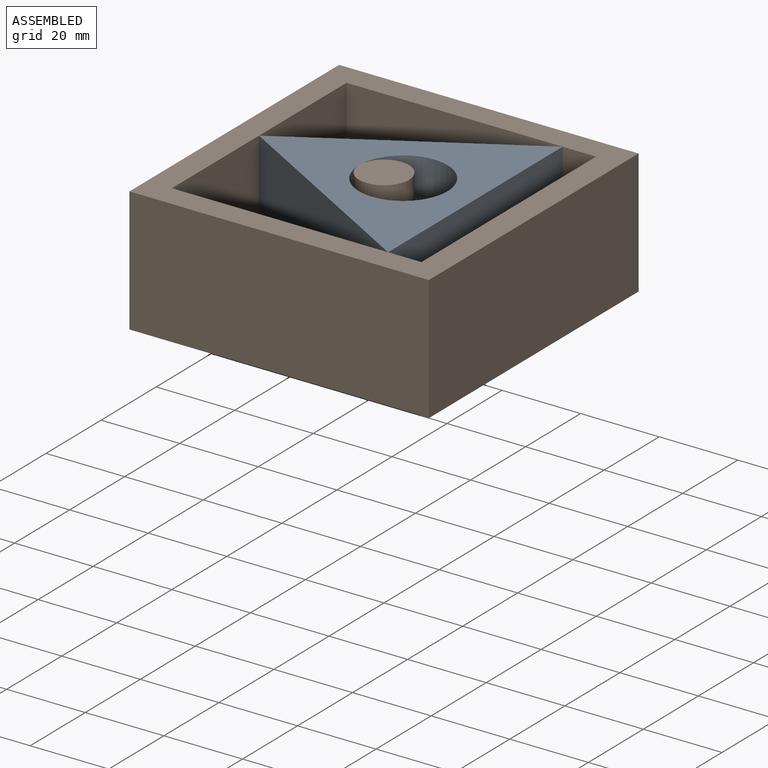
[diagram: assembled view]
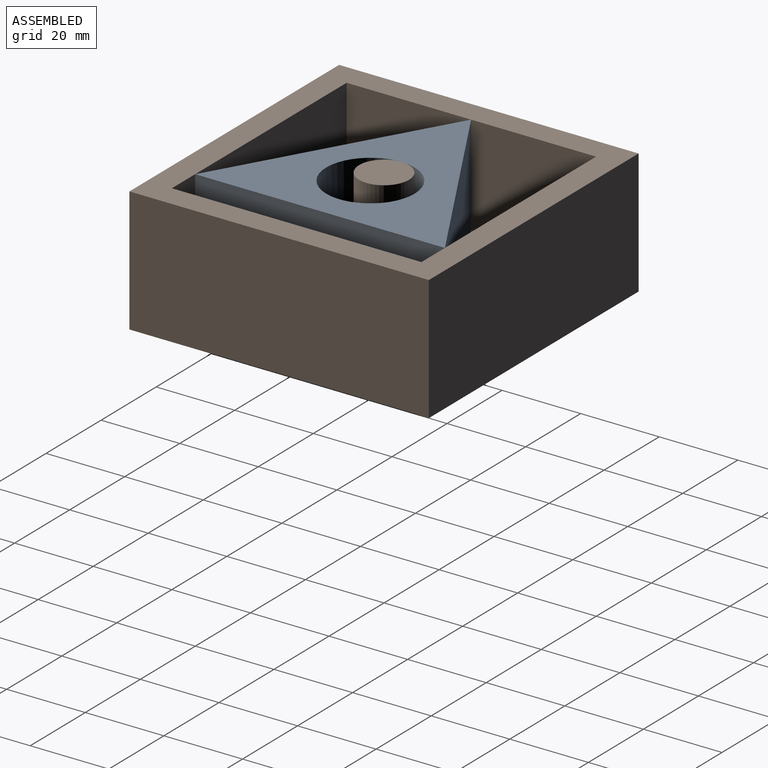
[diagram: assembled view, second angle]
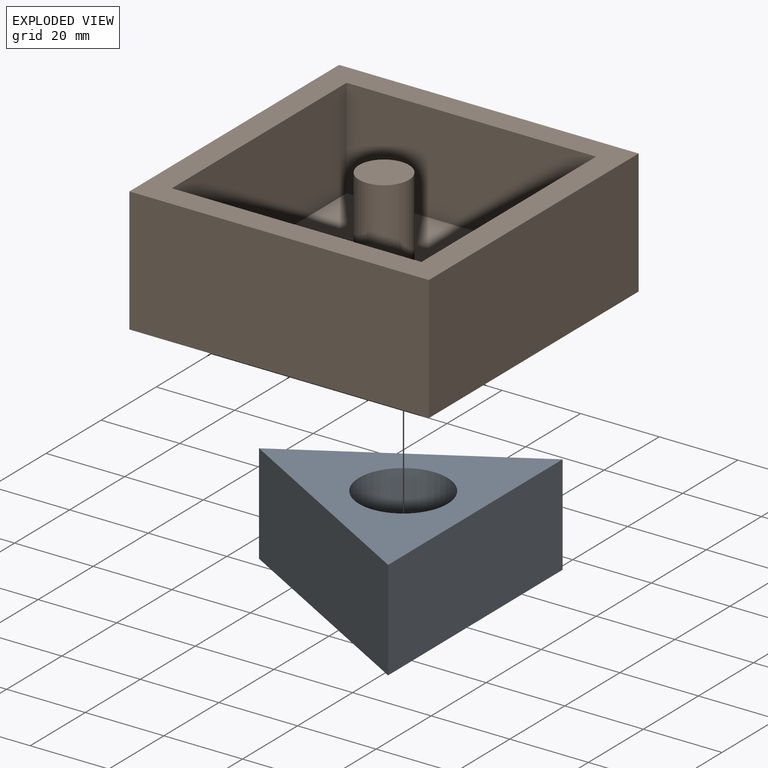
[diagram: exploded view]
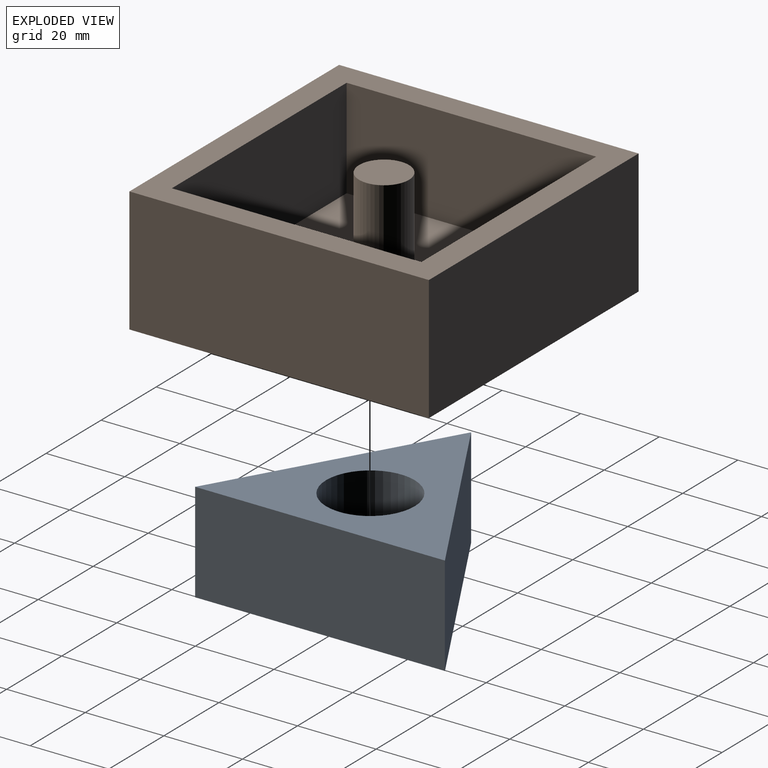
[diagram: exploded view, second angle]
ASSEMBLY  parts=2 mates=7
PART A: 6 faces, bbox 63.5x55x25.4 mm
  f0: cylinder r=11.26mm len=25.4mm, axis (0,0,-1), area 1797.3mm2, adj f1,f2
  f1: plane 63.5x54.99mm, normal (0,0,1), area 1347.6mm2, adj f0,f3,f4,f5
  f2: plane 63.5x54.99mm, normal (0,0,-1), area 1347.6mm2, adj f0,f3,f4,f5
  f3: plane 54.99x31.75mm, normal (-0.87,0.5,0), area 1612.9mm2, adj f1,f2,f4,f5
  f4: plane 54.99x31.75mm, normal (0.87,0.5,0), area 1612.9mm2, adj f1,f2,f3,f5
  f5: plane 63.5x25.4mm, normal (0,-1,0), area 1612.9mm2, adj f1,f2,f3,f4
PART B: 13 faces, bbox 76.2x76.2x31.8 mm
  f0: plane 63.5x25.4mm, normal (-1,0,0), area 1612.9mm2, adj f1,f7,f8,f11
  f1: plane 63.5x25.4mm, normal (0,1,0), area 1612.9mm2, adj f0,f2,f8,f11
  f2: plane 63.5x25.4mm, normal (1,0,0), area 1612.9mm2, adj f1,f7,f8,f11
  f3: plane 76.2x31.75mm, normal (0,1,0), area 2419.3mm2, adj f4,f6,f8,f12
  f4: plane 76.2x31.75mm, normal (-1,0,0), area 2419.3mm2, adj f3,f5,f8,f12
  f5: plane 76.2x31.75mm, normal (0,-1,0), area 2419.3mm2, adj f4,f6,f8,f12
  f6: plane 76.2x31.75mm, normal (1,0,0), area 2419.3mm2, adj f3,f5,f8,f12
  f7: plane 63.5x25.4mm, normal (0,-1,0), area 1612.9mm2, adj f0,f2,f8,f11
  f8: plane 76.2x76.2mm, normal (0,0,1), area 1774.2mm2, adj f0,f1,f2,f3,f4,f5,f6,f7
  f9: plane 12.7x12.7mm, normal (0,0,1), area 126.7mm2, adj f10
  f10: cylinder r=6.35mm len=25.4mm, axis (0,0,-1), area 1013.4mm2, adj f9,f11
  f11: plane 63.5x63.5mm, normal (0,0,1), area 3905.6mm2, adj f0,f1,f2,f7,f10
  f12: plane 76.2x76.2mm, normal (0,0,-1), area 5806.4mm2, adj f3,f4,f5,f6
PLACE A rot(axis=(0,0,-1),29.9deg) t=(23.21,31.75,6.35)mm
PLACE B rot(axis=(0,0,1),180deg) t=(0,-31.75,6.35)mm
MATE planar B.f10 <-> A.f0  axis (0,0,1) through (0,0,31.75)mm
MATE planar A.f2 <-> B.f11  axis (0,0,-1) through (-31.75,-0.06,6.35)mm
MATE planar A.f2 <-> B.f11  axis (0,0,-1) through (-31.75,-0.06,6.35)mm
MATE planar A.f2 <-> B.f11  axis (0,0,-1) through (23.28,-31.75,6.35)mm
MATE planar A.f2 <-> B.f11  axis (0,0,-1) through (23.21,31.75,6.35)mm
MATE planar A.f2 <-> B.f11  axis (0,0,-1) through (23.28,-31.75,6.35)mm
MATE planar A.f2 <-> B.f11  axis (0,0,-1) through (23.21,31.75,6.35)mm
